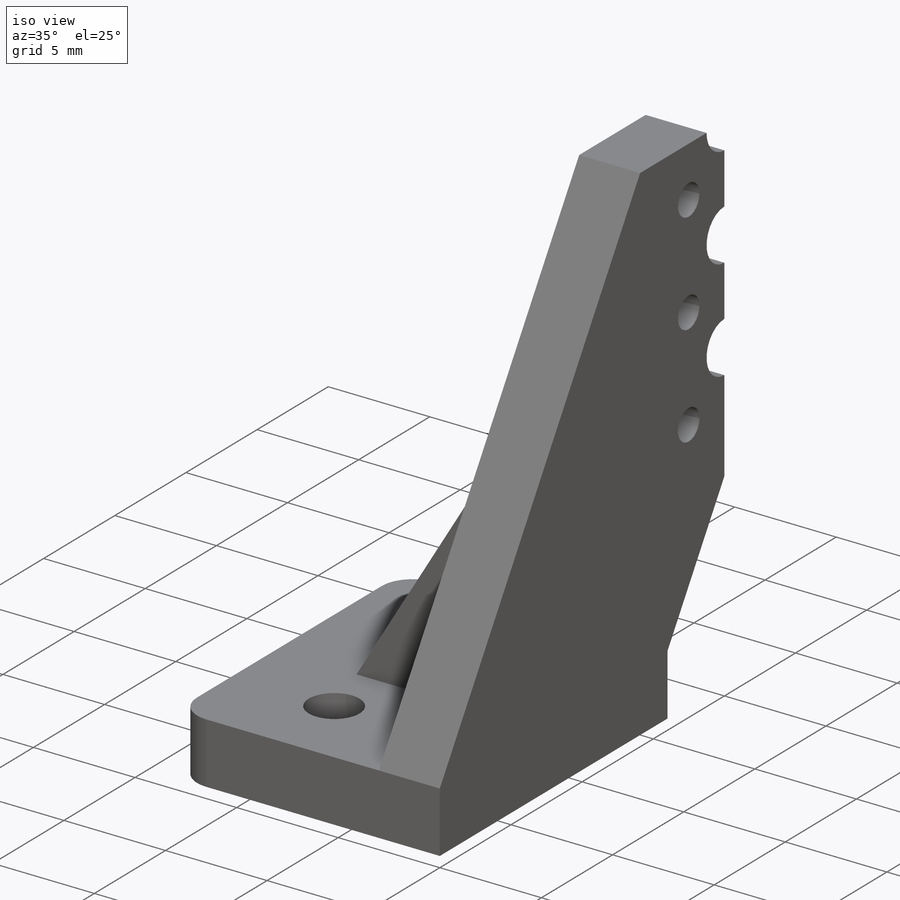
[diagram: iso view]
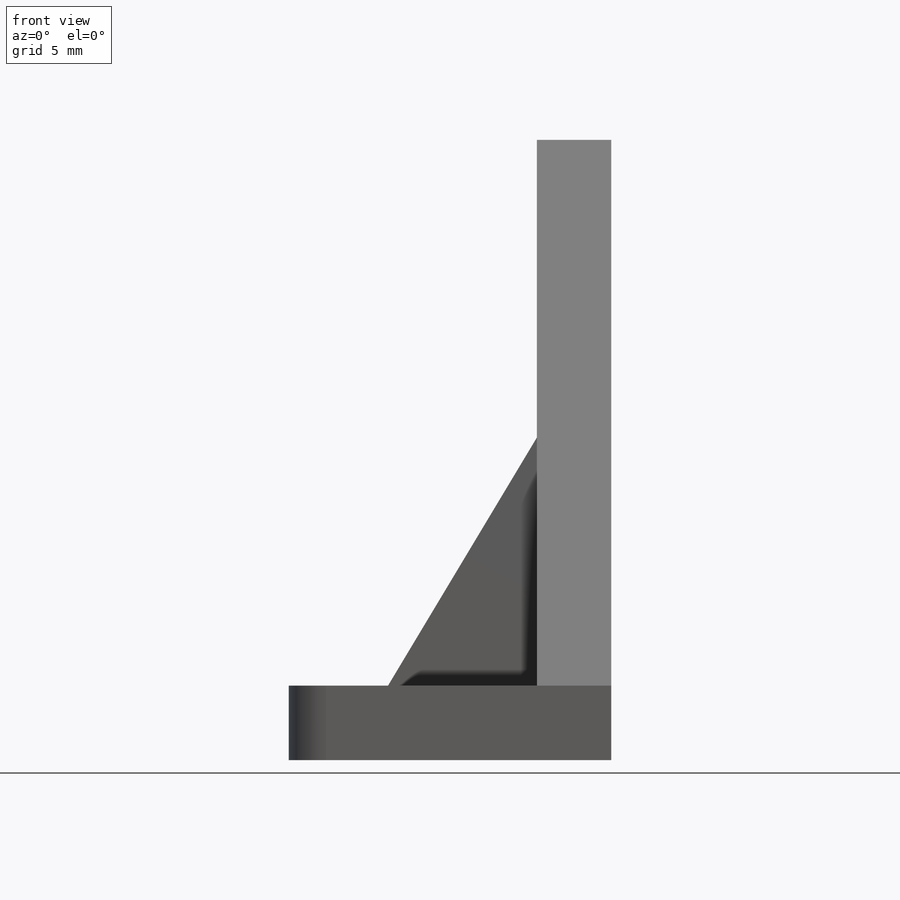
[diagram: front view]
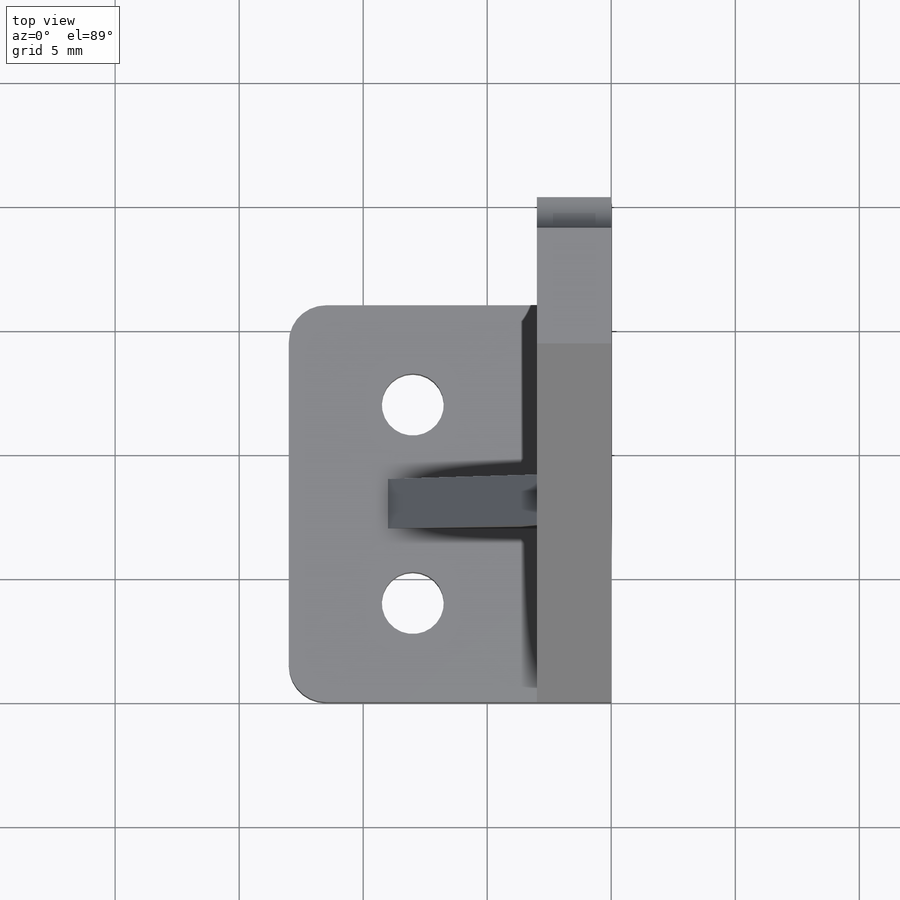
[diagram: top view]
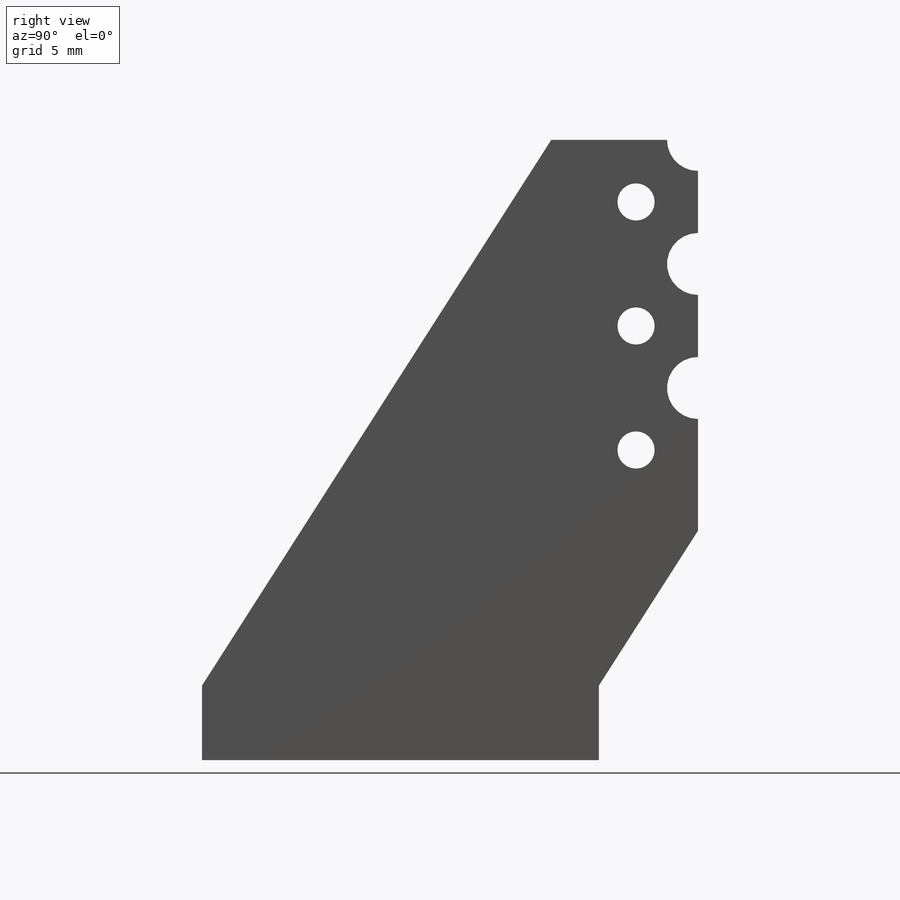
[diagram: right view]
SOLIDWORKS PART (.sldprt)
format: sldprt  version: not decoded by parser v0  size: 425,984 bytes
history: native  units: mm
features: sketch x9, extrude x4, plane x4, material x1, cut_extrude x1 (+12 scaffold rows collapsed)
feature tree (31):
  scaffold x12  (default folders/planes/origin — collapsed)
  material  "Nylon 6/10"
  sketch  "Sketch1"  dims[D3=2.5mm D4=4.0mm D1=15.0mm D2=5.0mm D5=3.0mm D6=8.0mm D7=12.5mm D8=28.0mm D9=16.0mm]
  extrude  "Extrude1"  Depth=3mm
  sketch  "Sketch2"  dims[D1=1.5mm D4=2.5mm D2=8.0mm D3=10.0mm D5=8.0mm]
  extrude  "Extrude2"  Depth=3mm
  plane  "Plane1"  Offset=5mm
  sketch  "Sketch3"  dims[D1=1.0mm]
  extrude  "Extrude3"  Depth=3mm
  plane  "Plane2"  Offset=1.5mm
  sketch  "Sketch4"
  plane  "Plane3"  Offset=12mm
  sketch  "Sketch5"  dims[D1=6.0mm D2=10.0mm]
  extrude  "Extrude4"  Depth=2mm
  sketch  "Sketch6"  dims[D1=1.5mm D2=10.0mm D3=2.5mm D4=10.0mm D5=15.0mm D6=8.0mm]
  cut_extrude  "Cut-Extrude1"  [1 undecoded]
  sketch  "Sketch7"
  plane  "Plane4"  Offset=2.5mm
  sketch  "Sketch8"  dims[D1=10.0mm D2=2.5mm]
  sketch  "Sketch9"  dims[D1=10.0mm D2=2.5mm]
decode coverage: 11 of 14 modeling features carry decoded parameters
note: 1 parameter value undecoded
note: suppression state not decoded; provenance and decode notes live in map.json
